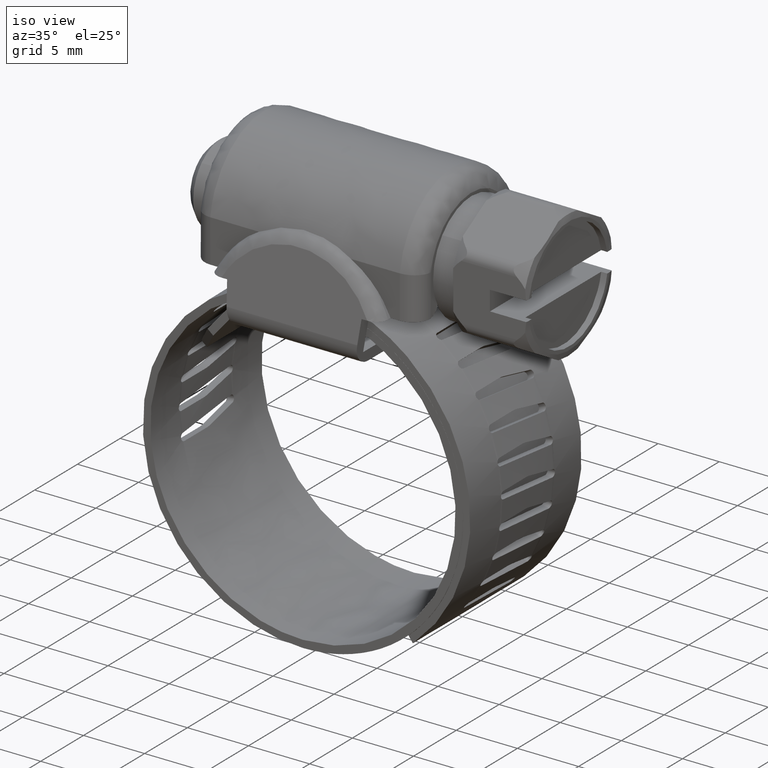
[diagram: clean part render]
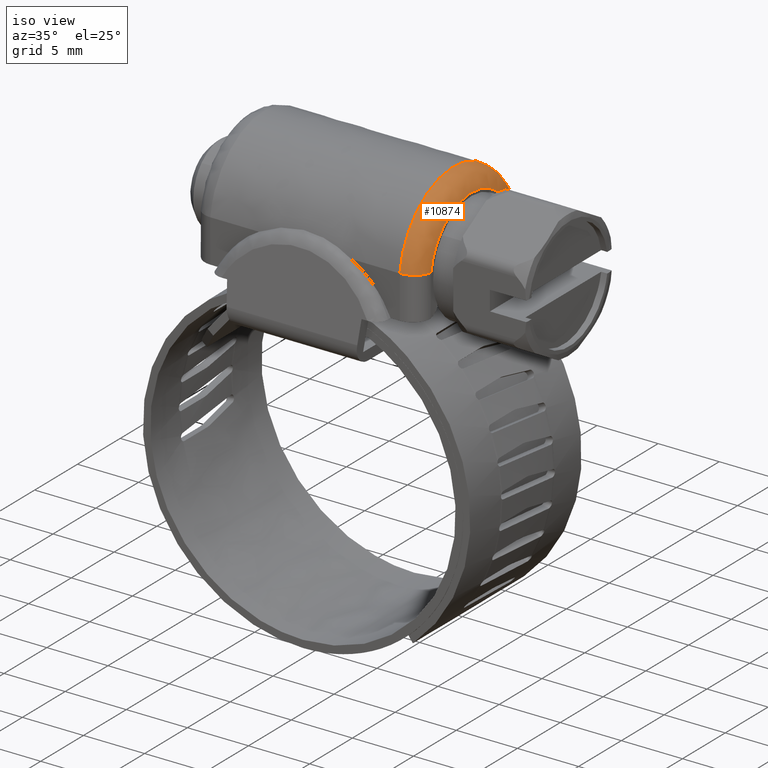
[diagram: same view with one face highlighted and labeled with its STEP entity id]
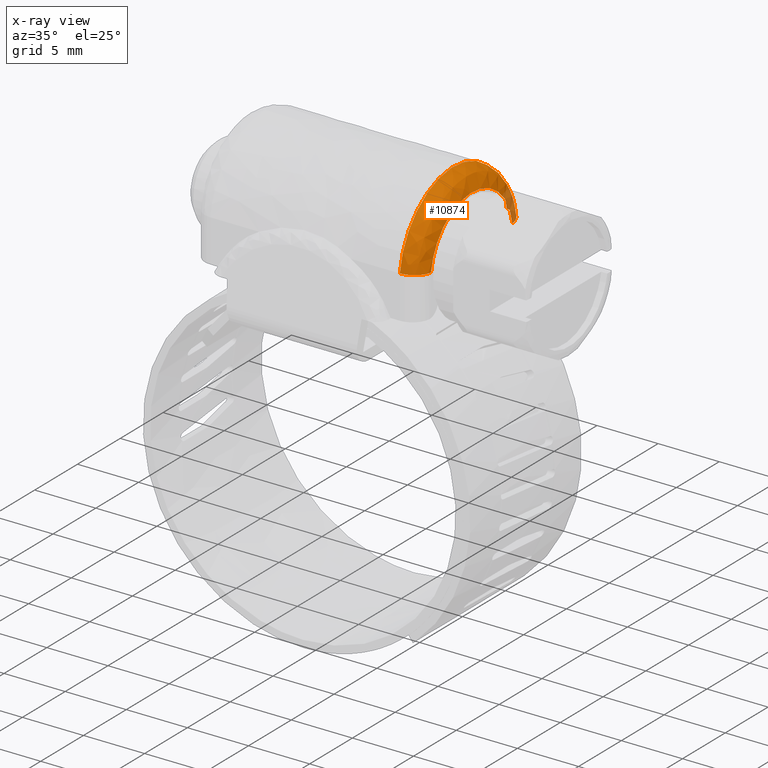
[diagram: x-ray of the same camera — body ghosted, the highlighted face saturated]
A machine part, iso view. The second image highlights one B-rep face of the part: STEP entity #10874.
The next image is the same camera in x-ray: the body ghosted, the highlighted face saturated — about 5% of this face is hidden behind the body in this view.
In plain terms, the highlighted face is a freeform B-spline surface patch.
Its self-contained STEP definition (entity closure, byte-faithful):
#10696=CARTESIAN_POINT('',(7.750000000000000,6.249999633170980,16.577121365332999));
#10697=VERTEX_POINT('',#10696);
#10703=CARTESIAN_POINT('',(9.250000000000000,4.750000000000000,16.474846138207202));
#10704=VERTEX_POINT('',#10703);
#10705=CARTESIAN_POINT('',(7.750000000000000,6.249999633170980,16.577121365332999));
#10706=CARTESIAN_POINT('',(7.879006531352172,6.249871711908599,16.577421065470570));
#10707=CARTESIAN_POINT('',(8.136971743328306,6.216151682978852,16.575658561926200));
#10708=CARTESIAN_POINT('',(8.469577400263265,6.080613486952085,16.566888699571809));
#10709=CARTESIAN_POINT('',(8.751965409384964,5.881674964595155,16.553524079248518));
#10710=CARTESIAN_POINT('',(8.981677039802793,5.631361892690873,16.536407555640938));
#10711=CARTESIAN_POINT('',(9.190158530632830,5.252445999784764,16.510163872751860));
#10712=CARTESIAN_POINT('',(9.250432480958736,4.939999691342704,16.488256709994300));
#10713=CARTESIAN_POINT('',(9.250000000000000,4.750000000000000,16.474846138207202));
#10714=B_SPLINE_CURVE_WITH_KNOTS('',3,(#10705,#10706,#10707,#10708,#10709,#10710,#10711,#10712,#10713),.UNSPECIFIED.,.F.,.U.,(4,1,1,1,1,1,4),(0.000000056253865,0.387016597857461,0.774047043008873,1.068928542323724,1.419069302930979,1.787667642979829,2.358983875440343),.UNSPECIFIED.);
#10715=EDGE_CURVE('',#10697,#10704,#10714,.T.);
#10734=CARTESIAN_POINT('',(7.645694265564879,6.297405704059716,15.740613133520691));
#10735=CARTESIAN_POINT('',(7.645694265564880,6.332976808576566,22.073490043306009));
#10736=CARTESIAN_POINT('',(7.645694265564881,0.0,22.073490043306016));
#10737=CARTESIAN_POINT('',(7.645694265564883,-6.332976601048711,22.073490043306016));
#10738=CARTESIAN_POINT('',(7.645694265564883,-6.297405705218813,15.740613339879651));
#10739=CARTESIAN_POINT('',(9.366305799931832,6.417340568757600,15.739939471981362));
#10740=CARTESIAN_POINT('',(9.366305799931835,6.453589129326653,22.193426799932030));
#10741=CARTESIAN_POINT('',(9.366305799931833,0.0,22.193426799932030));
#10742=CARTESIAN_POINT('',(9.366305799931833,-6.453588917846404,22.193426799932030));
#10743=CARTESIAN_POINT('',(9.366305799931837,-6.417340569938772,15.739939682270464));
#10744=CARTESIAN_POINT('',(9.246369043305810,4.696756175973144,15.749603813818043));
#10745=CARTESIAN_POINT('',(9.246369043305810,4.723285958660957,20.472815265565075));
#10746=CARTESIAN_POINT('',(9.246369043305810,0.0,20.472815265565075));
#10747=CARTESIAN_POINT('',(9.246369043305810,-4.723285803881705,20.472815265565078));
#10748=CARTESIAN_POINT('',(9.246369043305812,-4.696756176837623,15.749603967725507));
#10756=(BOUNDED_SURFACE()B_SPLINE_SURFACE(2,2,((#10734,#10739,#10744),(#10735,#10740,#10745),(#10736,#10741,#10746),(#10737,#10742,#10747),(#10738,#10743,#10748)),.UNSPECIFIED.,.F.,.F.,.U.)B_SPLINE_SURFACE_WITH_KNOTS((3,2,3),(3,3),(0.0,10.475333946268190,20.950667652331500),(0.0,2.733561038744554),.UNSPECIFIED.)GEOMETRIC_REPRESENTATION_ITEM()RATIONAL_B_SPLINE_SURFACE(((0.905325317390015,0.594097049394992,0.905325317390015),(0.643254757037007,0.422119812430193,0.643254757037007),(0.919258316853722,0.603240231090688,0.919258316853722),(0.643254763365912,0.422119816583379,0.643254763365912),(0.905325305371185,0.594097041507936,0.905325305371186)))REPRESENTATION_ITEM('')SURFACE());
#10757=CARTESIAN_POINT('',(7.750000000000000,-6.249999633170980,16.577121365332999));
#10758=VERTEX_POINT('',#10757);
#10759=CARTESIAN_POINT('',(9.250000000000000,-4.750000000000000,16.474846138207202));
#10760=VERTEX_POINT('',#10759);
#10761=CARTESIAN_POINT('',(7.750000000000000,-6.249999633170980,16.577121365332999));
#10762=CARTESIAN_POINT('',(7.922030973681987,-6.249910008651864,16.577526731071739));
#10763=CARTESIAN_POINT('',(8.167613480629315,-6.206874873326509,16.575077165438959));
#10764=CARTESIAN_POINT('',(8.505342643357395,-6.057019926845124,16.565309136343568));
#10765=CARTESIAN_POINT('',(8.727810034928123,-5.900312904027099,16.554781675334119));
#10766=CARTESIAN_POINT('',(8.939916582388369,-5.677510314140003,16.539564617562370));
#10767=CARTESIAN_POINT('',(9.111537846758267,-5.413735515639179,16.521358993394170));
#10768=CARTESIAN_POINT('',(9.225982010489313,-5.087066802827168,16.498577697286741));
#10769=CARTESIAN_POINT('',(9.250138043912354,-4.854171353790090,16.482198531048638));
#10770=CARTESIAN_POINT('',(9.250000000000000,-4.750000000000000,16.474846138207202));
#10771=B_SPLINE_CURVE_WITH_KNOTS('',3,(#10761,#10762,#10763,#10764,#10765,#10766,#10767,#10768,#10769,#10770),.UNSPECIFIED.,.F.,.U.,(4,1,1,1,1,1,1,4),(0.000000056251968,0.516027776467163,0.737187413199959,1.105786018592817,1.326914761608516,1.658657902208772,2.045689670856251,2.358983875440079),.UNSPECIFIED.);
#10772=EDGE_CURVE('',#10758,#10760,#10771,.T.);
#10773=ORIENTED_EDGE('',*,*,#10772,.T.);
#10774=CARTESIAN_POINT('',(9.250000000000000,4.750000000000000,16.474846138207202));
#10775=CARTESIAN_POINT('',(9.250000000000018,4.716298092705675,16.703941164420520));
#10776=CARTESIAN_POINT('',(9.249999999999968,4.592480213408131,17.261887466718811));
#10777=CARTESIAN_POINT('',(9.250000000000057,4.274272109659959,18.021952724794410));
#10778=CARTESIAN_POINT('',(9.249999999999947,3.862841493102382,18.649556355314228));
#10779=CARTESIAN_POINT('',(9.250000000000039,3.352443719730972,19.245684405110310));
#10780=CARTESIAN_POINT('',(9.250000000000023,2.746679466909066,19.751429807397368));
#10781=CARTESIAN_POINT('',(9.249999999999938,2.025684775279886,20.146033835336581));
#10782=CARTESIAN_POINT('',(9.250000000000110,1.374713590233418,20.392362752141150));
#10783=CARTESIAN_POINT('',(9.249999999999917,0.573112460920807,20.573885064389199));
#10784=CARTESIAN_POINT('',(9.250000000000094,-0.305343782473159,20.598356865527069));
#10785=CARTESIAN_POINT('',(9.250000000000011,-1.080555763141588,20.467610528778899));
#10786=CARTESIAN_POINT('',(9.249999999999968,-1.797322690527545,20.249894353605828));
#10787=CARTESIAN_POINT('',(9.250000000000018,-2.442264111871388,19.937738285247899));
#10788=CARTESIAN_POINT('',(9.249999999999998,-3.036564687397469,19.510405590052631));
#10789=CARTESIAN_POINT('',(9.249999999999961,-3.495263103390747,19.086721249501121));
#10790=CARTESIAN_POINT('',(9.250000000000066,-3.930953218401448,18.566363378395049));
#10791=CARTESIAN_POINT('',(9.250000000000462,-4.336166678321865,17.892254245332321));
#10792=CARTESIAN_POINT('',(9.249999999998071,-4.613295103496201,17.174922184944482));
#10793=CARTESIAN_POINT('',(9.250000000001940,-4.718890819873131,16.686319050022629));
#10794=CARTESIAN_POINT('',(9.250000000000000,-4.750000000000000,16.474846138207202));
#10795=B_SPLINE_CURVE_WITH_KNOTS('',3,(#10774,#10775,#10776,#10777,#10778,#10779,#10780,#10781,#10782,#10783,#10784,#10785,#10786,#10787,#10788,#10789,#10790,#10791,#10792,#10793,#10794),.UNSPECIFIED.,.F.,.U.,(4,1,1,1,1,1,1,1,1,1,1,1,1,1,1,1,1,1,4),(0.000000020371489,0.694689102680035,1.710066375369074,2.458227833932822,2.939183164861467,4.061427401354139,4.809580829098310,5.397431307746135,6.145597718221506,7.267780404356633,8.015943719197225,8.496906635537876,9.512270427782511,10.153554597088609,10.687956859570320,11.382677304993990,12.184267642565970,13.039326923916610,13.680578396189690),.UNSPECIFIED.);
#10796=EDGE_CURVE('',#10704,#10760,#10795,.T.);
#10797=ORIENTED_EDGE('',*,*,#10796,.F.);
#10798=ORIENTED_EDGE('',*,*,#10715,.F.);
#10799=CARTESIAN_POINT('',(7.750000000000000,-6.249999633170980,16.577121365332999));
#10800=CARTESIAN_POINT('',(7.749999999999989,-6.234945137005329,16.694573841088040));
#10801=CARTESIAN_POINT('',(7.750000000000010,-6.214735979583272,16.823298231953999));
#10802=CARTESIAN_POINT('',(7.749999999999997,-6.188399172751410,16.962927941131671));
#10803=CARTESIAN_POINT('',(7.750000000000006,-6.181413901101433,16.997754248808580));
#10804=CARTESIAN_POINT('',(7.749999999999999,-6.172302074478441,17.044236418193190));
#10805=CARTESIAN_POINT('',(7.750000000000021,-6.053425786221692,17.612204235749971));
#10806=CARTESIAN_POINT('',(7.749999999999984,-5.853381086466320,18.174764847997789));
#10807=CARTESIAN_POINT('',(7.749999999999846,-5.586853825809561,18.690215578280469));
#10808=CARTESIAN_POINT('',(7.750000000000203,-5.559030289277543,18.742474166174631));
#10809=CARTESIAN_POINT('',(7.750000000000119,-5.536878671588400,18.784341903090439));
#10810=CARTESIAN_POINT('',(7.749999999999965,-5.513781208517113,18.825695058589581));
#10811=CARTESIAN_POINT('',(7.750000000000014,-5.490933279459092,18.867187396842720));
#10812=CARTESIAN_POINT('',(7.749999999999942,-5.333001724436028,19.145197405472850));
#10813=CARTESIAN_POINT('',(7.750000000000050,-5.002918582207061,19.638377589723810));
#10814=CARTESIAN_POINT('',(7.749999999999989,-4.404688252876738,20.313513278481530));
#10815=CARTESIAN_POINT('',(7.750000000000006,-3.786404788194126,20.833317064959228));
#10816=CARTESIAN_POINT('',(7.749999999999990,-3.090092537459213,21.284628484533680));
#10817=CARTESIAN_POINT('',(7.750000000000013,-2.429364911677420,21.609243718367669));
#10818=CARTESIAN_POINT('',(7.750000000000000,-1.452168151249757,21.940697334171240));
#10819=CARTESIAN_POINT('',(7.750000000000016,-0.733759100190387,22.053183066058850));
#10820=CARTESIAN_POINT('',(7.750000000000001,-0.236769478383794,22.072657352986020));
#10821=CARTESIAN_POINT('',(7.750000000000004,-0.213095313120322,22.073355193444851));
#10822=CARTESIAN_POINT('',(7.750000000000008,-0.177590992446614,22.074749318349511));
#10823=CARTESIAN_POINT('',(7.750000000003596,-0.142065956632096,22.075395147341901));
#10824=CARTESIAN_POINT('',(7.749999999987081,-0.082878490939576,22.076779673171099));
#10825=CARTESIAN_POINT('',(7.750000000012834,-0.023684964612218,22.077197998304079));
#10826=CARTESIAN_POINT('',(7.749999999994119,0.035506813886916,22.077095962441330));
#10827=CARTESIAN_POINT('',(7.750000000001188,0.071019517404853,22.076566180203621));
#10828=CARTESIAN_POINT('',(7.750000000000006,0.106547597894328,22.076352563012708));
#10829=CARTESIAN_POINT('',(7.750000000000006,0.142062493286065,22.075352382479981));
#10830=CARTESIAN_POINT('',(7.750000000000006,0.177587199596809,22.074750491708318));
#10831=CARTESIAN_POINT('',(7.750000000000006,0.213090238047766,22.073355379435160));
#10832=CARTESIAN_POINT('',(7.750000000000010,0.236767069427895,22.072678279711631));
#10833=CARTESIAN_POINT('',(7.749999999999996,0.426091695280857,22.065209725157271));
#10834=CARTESIAN_POINT('',(7.750000000000004,0.615092464040301,22.049719084448061));
#10835=CARTESIAN_POINT('',(7.750000000000005,0.814784986952219,22.024282334712471));
#10836=CARTESIAN_POINT('',(7.750000000000010,0.849966212616819,22.019399652257039));
#10837=CARTESIAN_POINT('',(7.750000000000004,0.896914526005709,22.013100937220429));
#10838=CARTESIAN_POINT('',(7.750000000000010,0.978912359705010,22.000920735489711));
#10839=CARTESIAN_POINT('',(7.750000000000004,1.072391546975230,21.985491610040981));
#10840=CARTESIAN_POINT('',(7.750000000000004,1.153961240607198,21.970703906530279));
#10841=CARTESIAN_POINT('',(7.750000000000007,1.200443174555968,21.961575798059709));
#10842=CARTESIAN_POINT('',(7.750000000000008,1.235332251146535,21.954903588511641));
#10843=CARTESIAN_POINT('',(7.750000000000005,1.479032746090753,21.905422931362889));
#10844=CARTESIAN_POINT('',(7.750000000000004,2.155846190480277,21.728001790903569));
#10845=CARTESIAN_POINT('',(7.750000000000004,3.134855659307764,21.290752650911539));
#10846=CARTESIAN_POINT('',(7.750000000000004,4.054044028876471,20.634228310582021));
#10847=CARTESIAN_POINT('',(7.750000000000001,4.662725314146909,20.034402055403980));
#10848=CARTESIAN_POINT('',(7.750000000000004,5.139765381459308,19.444500888515140));
#10849=CARTESIAN_POINT('',(7.750000000000011,5.630827574103403,18.673731751133339));
#10850=CARTESIAN_POINT('',(7.750000000000009,5.910619030238081,18.003513278585949));
#10851=CARTESIAN_POINT('',(7.750000000000000,6.039627406047101,17.572407667634678));
#10852=CARTESIAN_POINT('',(7.750000000000004,6.046188199617560,17.549650560425551));
#10853=CARTESIAN_POINT('',(7.750000000000000,6.056375122405487,17.515612617011399));
#10854=CARTESIAN_POINT('',(7.750000000000002,6.065799268037471,17.481356058963438));
#10855=CARTESIAN_POINT('',(7.750000000000001,6.075607964656327,17.447207818138612));
#10856=CARTESIAN_POINT('',(7.750000000000004,6.084644057016104,17.412847230371948));
#10857=CARTESIAN_POINT('',(7.750000000000004,6.094065834057004,17.378590812726781));
#10858=CARTESIAN_POINT('',(7.750000000000001,6.102720288031065,17.344132479585131));
#10859=CARTESIAN_POINT('',(7.750000000000002,6.108734964806936,17.321224023267540));
#10860=CARTESIAN_POINT('',(7.750000000000005,6.151973847276460,17.148947079282610));
#10861=CARTESIAN_POINT('',(7.750000000000007,6.185979716079905,16.986558492528509));
#10862=CARTESIAN_POINT('',(7.750000000000000,6.215489268886876,16.811406026305612));
#10863=CARTESIAN_POINT('',(7.749999999999998,6.219171411391192,16.788006732830880));
#10864=CARTESIAN_POINT('',(7.750000000000005,6.225068201831544,16.752968283995500));
#10865=CARTESIAN_POINT('',(7.750000000012412,6.230225703100882,16.717814132440090));
#10866=CARTESIAN_POINT('',(7.749999999956607,6.239124586484185,16.659283685153220));
#10867=CARTESIAN_POINT('',(7.750000000020273,6.245470500821281,16.612348175090901));
#10868=CARTESIAN_POINT('',(7.750000000000000,6.249999633170980,16.577121365332999));
#10869=B_SPLINE_CURVE_WITH_KNOTS('',3,(#10799,#10800,#10801,#10802,#10803,#10804,#10805,#10806,#10807,#10808,#10809,#10810,#10811,#10812,#10813,#10814,#10815,#10816,#10817,#10818,#10819,#10820,#10821,#10822,#10823,#10824,#10825,#10826,#10827,#10828,#10829,#10830,#10831,#10832,#10833,#10834,#10835,#10836,#10837,#10838,#10839,#10840,#10841,#10842,#10843,#10844,#10845,#10846,#10847,#10848,#10849,#10850,#10851,#10852,#10853,#10854,#10855,#10856,#10857,#10858,#10859,#10860,#10861,#10862,#10863,#10864,#10865,#10866,#10867,#10868),.UNSPECIFIED.,.F.,.U.,(4,1,1,1,1,1,1,1,1,1,1,1,1,1,1,1,1,1,1,2,1,1,1,1,1,1,1,1,1,1,1,2,1,1,1,1,1,1,1,1,1,1,1,1,1,1,1,1,2,1,1,1,1,1,1,1,2,2,1,1,1,1,4),(0.000124799223045,0.355365705905982,0.390873085270368,0.426398795418098,0.461924505565825,0.532976566814394,2.167158820106714,2.238209441879281,2.273735026397544,2.344777563628290,2.380303048658176,2.415828533688069,2.486879545142536,3.339492666467365,4.192105684531191,5.186819653579917,5.755227717158810,6.678892970035191,7.389392549686177,8.845923622968900,8.881454484218773,8.916985345468682,8.952514615685750,8.988043885902783,9.094595903211355,9.130091568387520,9.165618475320933,9.201145382254341,9.236673636235469,9.272201890216602,9.307731282496983,9.343260674777383,9.876149282739867,9.911651710558873,9.947177844058333,9.982703977557771,10.053757024640960,10.195864788352351,10.266919213517300,10.302446523660659,10.337973833804041,10.373482410414489,11.048471284279040,12.433967378163951,13.570780668464099,14.423393509942350,14.991802175099380,15.844411388884600,17.158839285605460,17.194367612315549,17.229895939025631,17.265423899570280,17.300951860114939,17.336479351146188,17.372006842177431,17.407533750068101,17.443060657958782,17.940397905040470,17.975928211985309,18.011458518930169,18.046987406176989,18.082516293423812,18.189067482576640),.UNSPECIFIED.);
#10870=EDGE_CURVE('',#10758,#10697,#10869,.T.);
#10871=ORIENTED_EDGE('',*,*,#10870,.F.);
#10872=EDGE_LOOP('',(#10773,#10797,#10798,#10871));
#10873=FACE_OUTER_BOUND('',#10872,.T.);
#10874=ADVANCED_FACE('',(#10873),#10756,.T.);